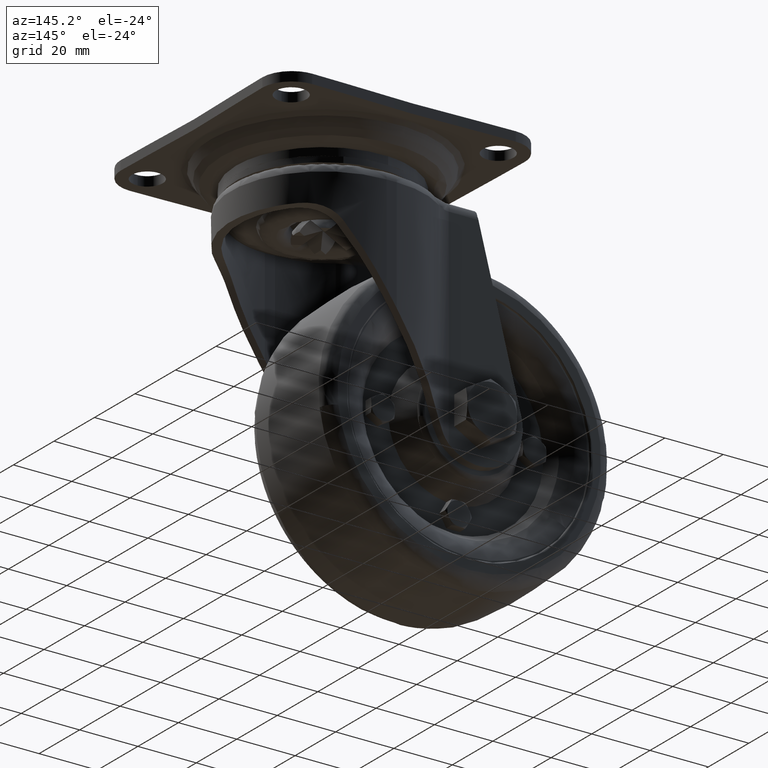
[diagram: clean part render]
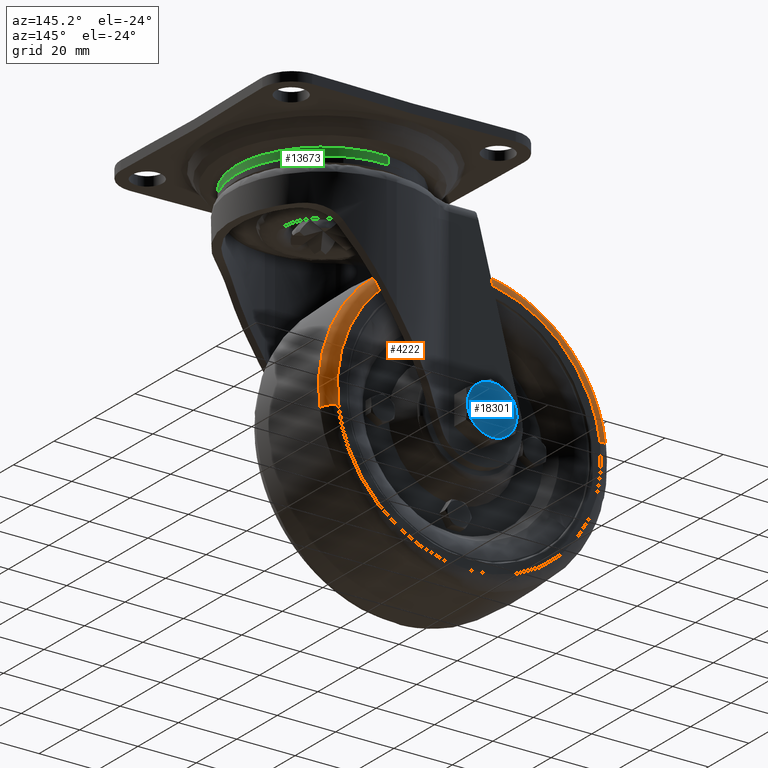
[diagram: same view with three faces highlighted in distinct colors, each labeled with its STEP entity id]
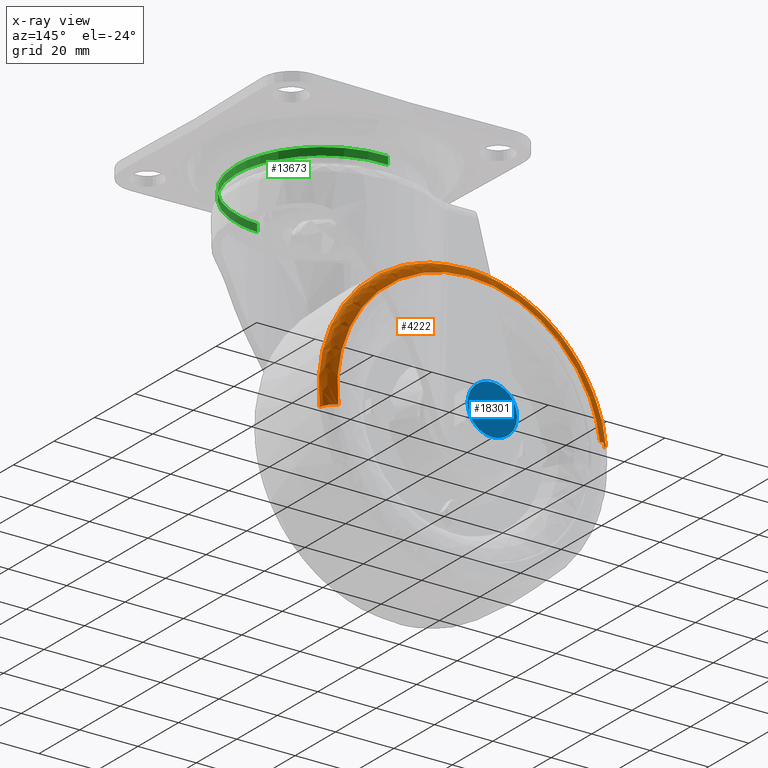
[diagram: x-ray of the same camera — body ghosted, the three highlighted faces saturated]
A machine part, auxiliary view with three faces highlighted in distinct colors.
The next image is the same camera in x-ray (body ghosted, the three faces saturated) — at least one of them is partly hidden behind the body in this view.
Their STEP definitions:

[orange] entity #4222 — the highlighted face is a freeform B-spline surface patch.
#4056=CARTESIAN_POINT('',(-81.870776382488273,19.0,-74.331502709038773));
#4057=VERTEX_POINT('',#4056);
#4075=CARTESIAN_POINT('',(-37.0,19.0,-34.772591999999911));
#4076=VERTEX_POINT('',#4075);
#4077=CARTESIAN_POINT('',(-37.0,19.0,-34.772591999999911));
#4078=CARTESIAN_POINT('',(-76.873323778728803,19.0,-34.772591999787629));
#4079=CARTESIAN_POINT('',(-81.870776382488273,19.000000000000004,-74.331502709038773));
#4087=(BOUNDED_CURVE()B_SPLINE_CURVE(2,(#4077,#4078,#4079),.UNSPECIFIED.,.F.,.U.)B_SPLINE_CURVE_WITH_KNOTS((3,3),(0.500000000000000,0.728321256480928),.UNSPECIFIED.)CURVE()GEOMETRIC_REPRESENTATION_ITEM()RATIONAL_B_SPLINE_CURVE((1.0,0.732505009063077,0.953608357590735))REPRESENTATION_ITEM(''));
#4088=EDGE_CURVE('',#4076,#4057,#4087,.T.);
#4090=CARTESIAN_POINT('',(7.870776382488280,19.0,-85.668497290961227));
#4091=VERTEX_POINT('',#4090);
#4092=CARTESIAN_POINT('',(7.870776382488280,19.0,-85.668497290961227));
#4093=CARTESIAN_POINT('',(8.227408003267833,19.000000000000011,-82.845467325561160));
#4094=CARTESIAN_POINT('',(8.227408003162111,19.0,-80.000000000399467));
#4095=CARTESIAN_POINT('',(8.227408001481635,19.000000000000011,-34.772592000187089));
#4096=CARTESIAN_POINT('',(-37.0,19.0,-34.772591999999911));
#4104=(BOUNDED_CURVE()B_SPLINE_CURVE(2,(#4092,#4093,#4094,#4095,#4096),.UNSPECIFIED.,.F.,.U.)B_SPLINE_CURVE_WITH_KNOTS((3,2,3),(0.228321256480928,0.250000000000000,0.500000000000000),.UNSPECIFIED.)CURVE()GEOMETRIC_REPRESENTATION_ITEM()RATIONAL_B_SPLINE_CURVE((0.953608357590735,0.974601772123471,1.0,0.707106781186547,1.0))REPRESENTATION_ITEM(''));
#4105=EDGE_CURVE('',#4091,#4076,#4104,.T.);
#4129=CARTESIAN_POINT('',(7.450815519737482,18.991245347269128,-86.882450831808782));
#4130=CARTESIAN_POINT('',(7.529129718754746,18.991245347269125,-86.262530113599254));
#4131=CARTESIAN_POINT('',(13.243707998091445,18.991245347269132,-41.026985146720868));
#4132=CARTESIAN_POINT('',(-31.364653427593844,18.991245347269121,-35.391638574314705));
#4133=CARTESIAN_POINT('',(-75.973014853279153,18.991245347269132,-29.756292001908562));
#4134=CARTESIAN_POINT('',(-81.687593132603837,18.991245347269128,-74.991836968691658));
#4135=CARTESIAN_POINT('',(-81.765907331609327,18.991245347269128,-75.611757686808076));
#4136=CARTESIAN_POINT('',(11.513383288513644,19.263574126974419,-87.511470178081041));
#4137=CARTESIAN_POINT('',(11.598854988176186,19.263574126974419,-86.834892008269165));
#4138=CARTESIAN_POINT('',(17.835715283226932,19.263574126974422,-37.465059181050719));
#4139=CARTESIAN_POINT('',(-30.849612767861185,19.263574126974419,-31.314671948911908));
#4140=CARTESIAN_POINT('',(-79.534940818949266,19.263574126974422,-25.164284716773096));
#4141=CARTESIAN_POINT('',(-85.771801113986911,19.263574126974426,-74.534117543887504));
#4142=CARTESIAN_POINT('',(-85.857272813636627,19.263574126974415,-75.210695713597786));
#4143=CARTESIAN_POINT('',(11.664038730149505,15.148010535379001,-87.534796604322679));
#4144=CARTESIAN_POINT('',(11.749775857118646,15.148010535378996,-86.856117361032432));
#4145=CARTESIAN_POINT('',(18.006004352828260,15.148010535378999,-37.332969438805243));
#4146=CARTESIAN_POINT('',(-30.830513104183247,15.148010535379001,-31.163482542988497));
#4147=CARTESIAN_POINT('',(-79.667030561194750,15.148010535378999,-24.993995647171744));
#4148=CARTESIAN_POINT('',(-85.923259056891169,15.148010535378997,-74.517143569294575));
#4149=CARTESIAN_POINT('',(-86.008996183847444,15.148010535378997,-75.195822812482916));
#4157=(BOUNDED_SURFACE()B_SPLINE_SURFACE(2,2,((#4129,#4136,#4143),(#4130,#4137,#4144),(#4131,#4138,#4145),(#4132,#4139,#4146),(#4133,#4140,#4147),(#4134,#4141,#4148),(#4135,#4142,#4149)),.UNSPECIFIED.,.F.,.F.,.U.)B_SPLINE_SURFACE_WITH_KNOTS((3,1,2,1,3),(3,3),(0.0,1.631162029600591,83.189263498968998,164.747364968337390,166.378526997688710),(0.0,6.765943338088544),.UNSPECIFIED.)GEOMETRIC_REPRESENTATION_ITEM()RATIONAL_B_SPLINE_SURFACE(((0.922968527686839,0.644400958997813,0.926844768493778),(0.917624512262547,0.640669858141163,0.921478309519094),(0.645079725658562,0.450383714476412,0.647788901845310),(0.912280496838254,0.636938757284513,0.916111850544411),(0.645079725658562,0.450383714476412,0.647788901845310),(0.917624512261730,0.640669858140593,0.921478309518274),(0.922968527685206,0.644400958996672,0.926844768492138)))REPRESENTATION_ITEM('')SURFACE());
#4158=ORIENTED_EDGE('',*,*,#4105,.T.);
#4159=ORIENTED_EDGE('',*,*,#4088,.T.);
#4160=CARTESIAN_POINT('',(-85.818236050484543,15.410941017946090,-73.832822582874400));
#4161=VERTEX_POINT('',#4160);
#4162=CARTESIAN_POINT('',(-81.870776382488273,19.000000000000004,-74.331502709038773));
#4163=CARTESIAN_POINT('',(-85.450475128806573,18.999999947155306,-73.879281591459403));
#4164=CARTESIAN_POINT('',(-85.818236050484529,15.410941017946085,-73.832822582874400));
#4172=(BOUNDED_CURVE()B_SPLINE_CURVE(2,(#4162,#4163,#4164),.UNSPECIFIED.,.F.,.U.)B_SPLINE_CURVE_WITH_KNOTS((3,3),(-1.709105731270690,-0.280033893420877),.UNSPECIFIED.)CURVE()GEOMETRIC_REPRESENTATION_ITEM()RATIONAL_B_SPLINE_CURVE((0.888415797061994,0.660977457212663,0.891899150279100))REPRESENTATION_ITEM(''));
#4173=EDGE_CURVE('',#4057,#4161,#4172,.T.);
#4174=ORIENTED_EDGE('',*,*,#4173,.T.);
#4175=CARTESIAN_POINT('',(-37.0,15.410940915619211,-30.793757167821699));
#4176=VERTEX_POINT('',#4175);
#4177=CARTESIAN_POINT('',(-37.0,15.410940915619211,-30.793757167821699));
#4178=CARTESIAN_POINT('',(-80.381137565101767,15.410940965465484,-30.793757107403259));
#4179=CARTESIAN_POINT('',(-85.818236050484543,15.410941017946085,-73.832822582874400));
#4187=(BOUNDED_CURVE()B_SPLINE_CURVE(2,(#4177,#4178,#4179),.UNSPECIFIED.,.F.,.U.)B_SPLINE_CURVE_WITH_KNOTS((3,3),(0.500000000000000,0.728321257185273),.UNSPECIFIED.)CURVE()GEOMETRIC_REPRESENTATION_ITEM()RATIONAL_B_SPLINE_CURVE((1.0,0.732505008237885,0.953608358954893))REPRESENTATION_ITEM(''));
#4188=EDGE_CURVE('',#4176,#4161,#4187,.T.);
#4189=ORIENTED_EDGE('',*,*,#4188,.F.);
#4190=CARTESIAN_POINT('',(11.818236054127571,15.410941018321830,-86.167177417585833));
#4191=VERTEX_POINT('',#4190);
#4192=CARTESIAN_POINT('',(11.818236054127571,15.410941018321836,-86.167177417585833));
#4193=CARTESIAN_POINT('',(12.206241901953723,15.410941015379544,-83.095794410472763));
#4194=CARTESIAN_POINT('',(12.206241871978669,15.410941012065930,-80.000000142547890));
#4195=CARTESIAN_POINT('',(12.206241395538699,15.410940959397456,-30.793757220884874));
#4196=CARTESIAN_POINT('',(-37.0,15.410940915619211,-30.793757167821699));
#4204=(BOUNDED_CURVE()B_SPLINE_CURVE(2,(#4192,#4193,#4194,#4195,#4196),.UNSPECIFIED.,.F.,.U.)B_SPLINE_CURVE_WITH_KNOTS((3,2,3),(0.228321257384423,0.250000000000000,0.500000000000000),.UNSPECIFIED.)CURVE()GEOMETRIC_REPRESENTATION_ITEM()RATIONAL_B_SPLINE_CURVE((0.953608359340602,0.974601773181981,1.0,0.707106781186548,1.0))REPRESENTATION_ITEM(''));
#4205=EDGE_CURVE('',#4191,#4176,#4204,.T.);
#4206=ORIENTED_EDGE('',*,*,#4205,.F.);
#4207=CARTESIAN_POINT('',(7.870776382488281,18.999999999999993,-85.668497290961227));
#4208=CARTESIAN_POINT('',(11.450475130631062,18.999999947344907,-86.120718408771097));
#4209=CARTESIAN_POINT('',(11.818236054127567,15.410941018321830,-86.167177417585833));
#4217=(BOUNDED_CURVE()B_SPLINE_CURVE(2,(#4207,#4208,#4209),.UNSPECIFIED.,.F.,.U.)B_SPLINE_CURVE_WITH_KNOTS((3,3),(-1.709105731270689,-0.280033893419947),.UNSPECIFIED.)CURVE()GEOMETRIC_REPRESENTATION_ITEM()RATIONAL_B_SPLINE_CURVE((0.888415797061993,0.660977457212515,0.891899150279401))REPRESENTATION_ITEM(''));
#4218=EDGE_CURVE('',#4091,#4191,#4217,.T.);
#4219=ORIENTED_EDGE('',*,*,#4218,.F.);
#4220=EDGE_LOOP('',(#4158,#4159,#4174,#4189,#4206,#4219));
#4221=FACE_OUTER_BOUND('',#4220,.T.);
#4222=ADVANCED_FACE('',(#4221),#4157,.T.);

[blue] entity #18301 — the highlighted face is a freeform B-spline surface patch.
#18169=CARTESIAN_POINT('',(-45.500000000000000,30.399999999999999,-80.0));
#18170=VERTEX_POINT('',#18169);
#18189=CARTESIAN_POINT('',(-41.249999625731753,30.399999999999999,-72.638784283916095));
#18190=VERTEX_POINT('',#18189);
#18204=CARTESIAN_POINT('',(-45.500000000000000,30.399999999999999,-80.0));
#18205=CARTESIAN_POINT('',(-45.500000000000000,30.399999999999999,-75.092522567832219));
#18206=CARTESIAN_POINT('',(-41.249999812865838,30.399999999999999,-72.638783959790317));
#18214=(BOUNDED_CURVE()B_SPLINE_CURVE(2,(#18204,#18205,#18206),.UNSPECIFIED.,.F.,.U.)CURVE()GEOMETRIC_REPRESENTATION_ITEM()QUASI_UNIFORM_CURVE()RATIONAL_B_SPLINE_CURVE((1.0,0.866025397429029,1.0))REPRESENTATION_ITEM(''));
#18215=EDGE_CURVE('',#18170,#18190,#18214,.T.);
#18220=CARTESIAN_POINT('',(-46.349149967050707,30.399999999999999,-70.650850123455825));
#18221=CARTESIAN_POINT('',(-46.349149967050707,30.399999999999999,-89.349150433000588));
#18222=CARTESIAN_POINT('',(-27.650849576973769,30.399999999999999,-70.650850123455825));
#18223=CARTESIAN_POINT('',(-27.650849576973769,30.399999999999999,-89.349150433000588));
#18224=B_SPLINE_SURFACE_WITH_KNOTS('',1,1,((#18220,#18222),(#18221,#18223)),.UNSPECIFIED.,.F.,.F.,.U.,(2,2),(2,2),(0.0,18.698300309544759),(0.0,18.698300390076941),.UNSPECIFIED.);
#18225=CARTESIAN_POINT('',(-32.750000374268453,30.399999999999999,-72.638784283916195));
#18226=VERTEX_POINT('',#18225);
#18227=CARTESIAN_POINT('',(-28.500000000000000,30.399999999999999,-80.0));
#18228=VERTEX_POINT('',#18227);
#18229=CARTESIAN_POINT('',(-32.750000374268453,30.399999999999999,-72.638784283916195));
#18230=CARTESIAN_POINT('',(-28.499999999999993,30.399999999999999,-75.092522567832134));
#18231=CARTESIAN_POINT('',(-28.500000000000000,30.399999999999999,-80.0));
#18239=(BOUNDED_CURVE()B_SPLINE_CURVE(2,(#18229,#18230,#18231),.UNSPECIFIED.,.F.,.U.)CURVE()GEOMETRIC_REPRESENTATION_ITEM()QUASI_UNIFORM_CURVE()RATIONAL_B_SPLINE_CURVE((1.0,0.866025397429026,1.0))REPRESENTATION_ITEM(''));
#18240=EDGE_CURVE('',#18226,#18228,#18239,.T.);
#18241=ORIENTED_EDGE('',*,*,#18240,.T.);
#18242=CARTESIAN_POINT('',(-32.749999508243000,30.399999999999999,-87.361215716083890));
#18243=VERTEX_POINT('',#18242);
#18244=CARTESIAN_POINT('',(-28.500000000000000,30.399999999999999,-80.0));
#18245=CARTESIAN_POINT('',(-28.500000000000000,30.399999999999999,-84.907476932167853));
#18246=CARTESIAN_POINT('',(-32.749999537615210,30.399999999999999,-87.361215665209727));
#18254=(BOUNDED_CURVE()B_SPLINE_CURVE(2,(#18244,#18245,#18246),.UNSPECIFIED.,.F.,.U.)CURVE()GEOMETRIC_REPRESENTATION_ITEM()QUASI_UNIFORM_CURVE()RATIONAL_B_SPLINE_CURVE((1.0,0.866025419487849,1.0))REPRESENTATION_ITEM(''));
#18255=EDGE_CURVE('',#18228,#18243,#18254,.T.);
#18256=ORIENTED_EDGE('',*,*,#18255,.T.);
#18257=CARTESIAN_POINT('',(-41.250000491757199,30.399999999999999,-87.361215716083990));
#18258=VERTEX_POINT('',#18257);
#18259=CARTESIAN_POINT('',(-32.749999508243000,30.399999999999999,-87.361215716083890));
#18260=CARTESIAN_POINT('',(-37.000000000000071,30.399999999999999,-89.814954932167694));
#18261=CARTESIAN_POINT('',(-41.250000462384889,30.399999999999999,-87.361215665209670));
#18269=(BOUNDED_CURVE()B_SPLINE_CURVE(2,(#18259,#18260,#18261),.UNSPECIFIED.,.F.,.U.)CURVE()GEOMETRIC_REPRESENTATION_ITEM()QUASI_UNIFORM_CURVE()RATIONAL_B_SPLINE_CURVE((1.0,0.866025372377612,1.0))REPRESENTATION_ITEM(''));
#18270=EDGE_CURVE('',#18243,#18258,#18269,.T.);
#18271=ORIENTED_EDGE('',*,*,#18270,.T.);
#18272=CARTESIAN_POINT('',(-41.250000491757199,30.399999999999999,-87.361215716083990));
#18273=CARTESIAN_POINT('',(-45.500000000000000,30.399999999999995,-84.907476932167754));
#18274=CARTESIAN_POINT('',(-45.500000000000000,30.399999999999999,-80.0));
#18282=(BOUNDED_CURVE()B_SPLINE_CURVE(2,(#18272,#18273,#18274),.UNSPECIFIED.,.F.,.U.)CURVE()GEOMETRIC_REPRESENTATION_ITEM()QUASI_UNIFORM_CURVE()RATIONAL_B_SPLINE_CURVE((1.0,0.866025419487853,1.0))REPRESENTATION_ITEM(''));
#18283=EDGE_CURVE('',#18258,#18170,#18282,.T.);
#18284=ORIENTED_EDGE('',*,*,#18283,.T.);
#18285=ORIENTED_EDGE('',*,*,#18215,.T.);
#18286=CARTESIAN_POINT('',(-41.249999625731753,30.399999999999999,-72.638784283916095));
#18287=CARTESIAN_POINT('',(-37.000000000000071,30.400000000000002,-70.185045567832333));
#18288=CARTESIAN_POINT('',(-32.750000187134269,30.399999999999999,-72.638783959790260));
#18296=(BOUNDED_CURVE()B_SPLINE_CURVE(2,(#18286,#18287,#18288),.UNSPECIFIED.,.F.,.U.)CURVE()GEOMETRIC_REPRESENTATION_ITEM()QUASI_UNIFORM_CURVE()RATIONAL_B_SPLINE_CURVE((1.0,0.866025416495260,1.0))REPRESENTATION_ITEM(''));
#18297=EDGE_CURVE('',#18190,#18226,#18296,.T.);
#18298=ORIENTED_EDGE('',*,*,#18297,.T.);
#18299=EDGE_LOOP('',(#18241,#18256,#18271,#18284,#18285,#18298));
#18300=FACE_OUTER_BOUND('',#18299,.T.);
#18301=ADVANCED_FACE('',(#18300),#18224,.F.);

[green] entity #13673 — the highlighted face is a freeform B-spline surface patch.
#13534=CARTESIAN_POINT('',(1.813139575145959,-29.644603638453919,-10.517288000000020));
#13535=VERTEX_POINT('',#13534);
#13553=CARTESIAN_POINT('',(29.699999999999999,0.0,-10.517288000000001));
#13554=VERTEX_POINT('',#13553);
#13555=CARTESIAN_POINT('',(29.699999999999999,0.0,-10.517288000000001));
#13556=CARTESIAN_POINT('',(29.700000000000003,-27.938972121853585,-10.517287999999999));
#13557=CARTESIAN_POINT('',(1.813139575145955,-29.644603638453983,-10.517287999999997));
#13565=(BOUNDED_CURVE()B_SPLINE_CURVE(2,(#13555,#13556,#13557),.UNSPECIFIED.,.F.,.U.)B_SPLINE_CURVE_WITH_KNOTS((3,3),(0.500000000000000,0.739332974168428),.UNSPECIFIED.)CURVE()GEOMETRIC_REPRESENTATION_ITEM()RATIONAL_B_SPLINE_CURVE((1.0,0.719603979310449,0.976072067233876))REPRESENTATION_ITEM(''));
#13566=EDGE_CURVE('',#13554,#13535,#13565,.T.);
#13568=CARTESIAN_POINT('',(-1.813139575145959,29.644603638453919,-10.517288000000020));
#13569=VERTEX_POINT('',#13568);
#13570=CARTESIAN_POINT('',(-1.813139575145959,29.644603638453916,-10.517288000000018));
#13571=CARTESIAN_POINT('',(-0.907416042575794,29.699999999999999,-10.517287999999997));
#13572=CARTESIAN_POINT('',(0.0,29.699999999999999,-10.517288000000001));
#13573=CARTESIAN_POINT('',(29.699999999999999,29.699999999999999,-10.517288000000001));
#13574=CARTESIAN_POINT('',(29.699999999999999,0.0,-10.517288000000001));
#13582=(BOUNDED_CURVE()B_SPLINE_CURVE(2,(#13570,#13571,#13572,#13573,#13574),.UNSPECIFIED.,.F.,.U.)B_SPLINE_CURVE_WITH_KNOTS((3,2,3),(0.239332974168428,0.250000000000000,0.500000000000000),.UNSPECIFIED.)CURVE()GEOMETRIC_REPRESENTATION_ITEM()RATIONAL_B_SPLINE_CURVE((0.976072067233876,0.987502801876098,1.0,0.707106781186547,1.0))REPRESENTATION_ITEM(''));
#13583=EDGE_CURVE('',#13569,#13554,#13582,.T.);
#13607=CARTESIAN_POINT('',(-1.813141624185253,29.644603513129439,-10.450471074999999));
#13608=CARTESIAN_POINT('',(27.831461888944190,31.457745137314703,-10.450471074999996));
#13609=CARTESIAN_POINT('',(29.644603513129439,1.813141624185253,-10.450471074999999));
#13610=CARTESIAN_POINT('',(31.457745137314703,-27.831461888944190,-10.450471074999996));
#13611=CARTESIAN_POINT('',(1.813141624185253,-29.644603513129439,-10.450471074999999));
#13612=CARTESIAN_POINT('',(-1.813141624185253,29.644603513129439,-13.258452348125020));
#13613=CARTESIAN_POINT('',(27.831461888944190,31.457745137314703,-13.258452348125020));
#13614=CARTESIAN_POINT('',(29.644603513129439,1.813141624185253,-13.258452348125020));
#13615=CARTESIAN_POINT('',(31.457745137314703,-27.831461888944190,-13.258452348125020));
#13616=CARTESIAN_POINT('',(1.813141624185253,-29.644603513129439,-13.258452348125020));
#13624=(BOUNDED_SURFACE()B_SPLINE_SURFACE(2,1,((#13607,#13612),(#13608,#13613),(#13609,#13614),(#13610,#13615),(#13611,#13616)),.UNSPECIFIED.,.F.,.F.,.U.)B_SPLINE_SURFACE_WITH_KNOTS((3,2,3),(2,2),(0.0,49.208571209923690,98.417142419847380),(0.0,2.807981273125026),.UNSPECIFIED.)GEOMETRIC_REPRESENTATION_ITEM()RATIONAL_B_SPLINE_SURFACE(((1.0,1.0),(0.707106781186548,0.707106781186548),(1.0,1.0),(0.707106781186548,0.707106781186548),(1.0,1.0)))REPRESENTATION_ITEM('')SURFACE());
#13625=ORIENTED_EDGE('',*,*,#13583,.T.);
#13626=ORIENTED_EDGE('',*,*,#13566,.T.);
#13627=CARTESIAN_POINT('',(1.813139599798409,-29.644603636946108,-13.189965000000020));
#13628=VERTEX_POINT('',#13627);
#13629=CARTESIAN_POINT('',(1.813139575145959,-29.644603638453919,-10.517288000000020));
#13630=CARTESIAN_POINT('',(1.813139599798409,-29.644603636946108,-13.189965000000020));
#13631=QUASI_UNIFORM_CURVE('',1,(#13629,#13630),.UNSPECIFIED.,.F.,.U.);
#13632=EDGE_CURVE('',#13535,#13628,#13631,.T.);
#13633=ORIENTED_EDGE('',*,*,#13632,.T.);
#13634=CARTESIAN_POINT('',(29.699999999999999,0.0,-13.189965000000020));
#13635=VERTEX_POINT('',#13634);
#13636=CARTESIAN_POINT('',(29.699999999999999,0.0,-13.189965000000020));
#13637=CARTESIAN_POINT('',(29.700000000000010,-27.938972098576098,-13.189965000000020));
#13638=CARTESIAN_POINT('',(1.813139599798422,-29.644603636946186,-13.189965000000027));
#13646=(BOUNDED_CURVE()B_SPLINE_CURVE(2,(#13636,#13637,#13638),.UNSPECIFIED.,.F.,.U.)B_SPLINE_CURVE_WITH_KNOTS((3,3),(0.500000000000000,0.739332974024938),.UNSPECIFIED.)CURVE()GEOMETRIC_REPRESENTATION_ITEM()RATIONAL_B_SPLINE_CURVE((1.0,0.719603979478558,0.976072066926349))REPRESENTATION_ITEM(''));
#13647=EDGE_CURVE('',#13635,#13628,#13646,.T.);
#13648=ORIENTED_EDGE('',*,*,#13647,.F.);
#13649=CARTESIAN_POINT('',(-1.813139599798406,29.644603636946108,-13.189965000000020));
#13650=VERTEX_POINT('',#13649);
#13651=CARTESIAN_POINT('',(-1.813139599798406,29.644603636946108,-13.189965000000026));
#13652=CARTESIAN_POINT('',(-0.907416054936582,29.700000000000003,-13.189965000000024));
#13653=CARTESIAN_POINT('',(0.0,29.699999999999999,-13.189965000000020));
#13654=CARTESIAN_POINT('',(29.699999999999999,29.699999999999999,-13.189965000000020));
#13655=CARTESIAN_POINT('',(29.699999999999999,0.0,-13.189965000000020));
#13663=(BOUNDED_CURVE()B_SPLINE_CURVE(2,(#13651,#13652,#13653,#13654,#13655),.UNSPECIFIED.,.F.,.U.)B_SPLINE_CURVE_WITH_KNOTS((3,2,3),(0.239332974024938,0.250000000000000,0.500000000000000),.UNSPECIFIED.)CURVE()GEOMETRIC_REPRESENTATION_ITEM()RATIONAL_B_SPLINE_CURVE((0.976072066926349,0.987502801707989,1.0,0.707106781186547,1.0))REPRESENTATION_ITEM(''));
#13664=EDGE_CURVE('',#13650,#13635,#13663,.T.);
#13665=ORIENTED_EDGE('',*,*,#13664,.F.);
#13666=CARTESIAN_POINT('',(-1.813139575145959,29.644603638453919,-10.517288000000020));
#13667=CARTESIAN_POINT('',(-1.813139599798406,29.644603636946108,-13.189965000000020));
#13668=QUASI_UNIFORM_CURVE('',1,(#13666,#13667),.UNSPECIFIED.,.F.,.U.);
#13669=EDGE_CURVE('',#13569,#13650,#13668,.T.);
#13670=ORIENTED_EDGE('',*,*,#13669,.F.);
#13671=EDGE_LOOP('',(#13625,#13626,#13633,#13648,#13665,#13670));
#13672=FACE_OUTER_BOUND('',#13671,.T.);
#13673=ADVANCED_FACE('',(#13672),#13624,.T.);